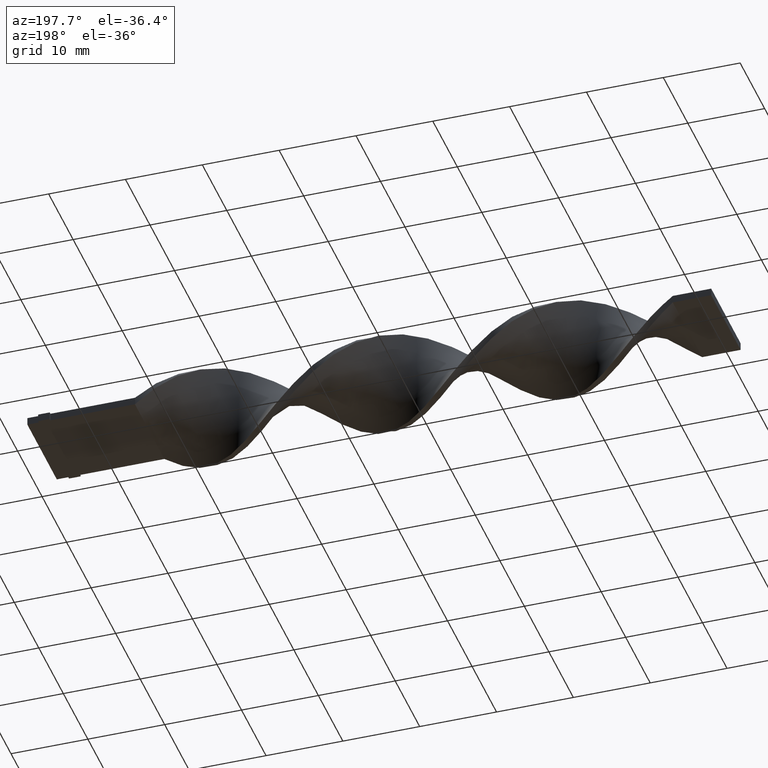
[diagram: clean part render]
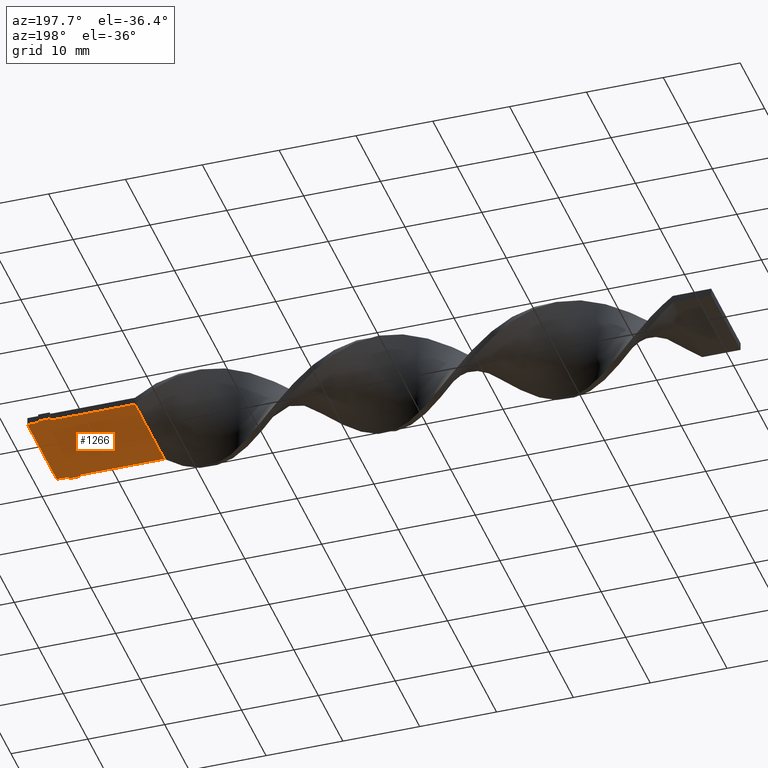
[diagram: same view with one face highlighted and labeled with its STEP entity id]
A machine part, auxiliary view. The second image highlights one B-rep face of the part: STEP entity #1266.
In plain terms, the highlighted planar face has unit normal (0, 0, 1).
Its self-contained STEP definition (entity closure, byte-faithful):
#30 = DIRECTION ( 'NONE',  ( -1.000000000000000000, -1.577021341797097067E-16, 0.000000000000000000 ) ) ;
#36 = LINE ( 'NONE', #1029, #1114 ) ;
#39 = LINE ( 'NONE', #1303, #1091 ) ;
#46 = AXIS2_PLACEMENT_3D ( 'NONE', #644, #521, #784 ) ;
#52 = CARTESIAN_POINT ( 'NONE',  ( -1.469576158976823947E-15, 6.000000000000000000, -0.5000000000000000000 ) ) ;
#74 = VECTOR ( 'NONE', #1448, 1000.000000000000000 ) ;
#76 = CARTESIAN_POINT ( 'NONE',  ( -1.499999999999993783, -6.000000000000000000, -0.5000000000000000000 ) ) ;
#103 = CARTESIAN_POINT ( 'NONE',  ( -1.499999999999995337, 6.000000000000000000, -0.5000000000000000000 ) ) ;
#137 = VERTEX_POINT ( 'NONE', #582 ) ;
#148 = LINE ( 'NONE', #651, #884 ) ;
#216 = ORIENTED_EDGE ( 'NONE', *, *, #1530, .F. ) ;
#224 = DIRECTION ( 'NONE',  ( -1.000000000000000000, 0.000000000000000000, 0.000000000000000000 ) ) ;
#232 = CARTESIAN_POINT ( 'NONE',  ( -1.499999999999995337, 6.000000000000000000, -0.5000000000000000000 ) ) ;
#237 = LINE ( 'NONE', #103, #571 ) ;
#262 = FACE_OUTER_BOUND ( 'NONE', #482, .T. ) ;
#313 = CARTESIAN_POINT ( 'NONE',  ( -1.499999999999995337, 6.299999999999999822, -0.5000000000000000000 ) ) ;
#325 = DIRECTION ( 'NONE',  ( 1.445602896647339163E-16, -1.000000000000000000, 0.000000000000000000 ) ) ;
#326 = CARTESIAN_POINT ( 'NONE',  ( -2.999999999999995115, 6.000000000000000000, -0.5000000000000000000 ) ) ;
#331 = VERTEX_POINT ( 'NONE', #1207 ) ;
#338 = ORIENTED_EDGE ( 'NONE', *, *, #1005, .F. ) ;
#353 = ORIENTED_EDGE ( 'NONE', *, *, #1323, .F. ) ;
#375 = CARTESIAN_POINT ( 'NONE',  ( -2.999999999999995115, 6.299999999999999822, -0.5000000000000000000 ) ) ;
#388 = EDGE_CURVE ( 'NONE', #871, #1131, #558, .T. ) ;
#416 = LINE ( 'NONE', #76, #1485 ) ;
#482 = EDGE_LOOP ( 'NONE', ( #857, #1600, #565, #804, #793, #1513, #353, #813, #1137, #1411, #338, #216 ) ) ;
#496 = CARTESIAN_POINT ( 'NONE',  ( -2.999999999999993339, -6.299999999999999822, -0.5000000000000000000 ) ) ;
#502 = EDGE_CURVE ( 'NONE', #1145, #331, #1415, .T. ) ;
#504 = CARTESIAN_POINT ( 'NONE',  ( -13.99999999999999822, 5.999999999999998224, -0.5000000000000000000 ) ) ;
#514 = DIRECTION ( 'NONE',  ( 0.000000000000000000, -1.000000000000000000, 0.000000000000000000 ) ) ;
#521 = DIRECTION ( 'NONE',  ( 0.000000000000000000, 0.000000000000000000, 1.000000000000000000 ) ) ;
#528 = VERTEX_POINT ( 'NONE', #1169 ) ;
#556 = LINE ( 'NONE', #52, #1378 ) ;
#558 = LINE ( 'NONE', #825, #834 ) ;
#565 = ORIENTED_EDGE ( 'NONE', *, *, #763, .T. ) ;
#571 = VECTOR ( 'NONE', #869, 1000.000000000000000 ) ;
#582 = CARTESIAN_POINT ( 'NONE',  ( -1.469576158976823947E-15, 6.000000000000000000, -0.5000000000000000000 ) ) ;
#607 = EDGE_CURVE ( 'NONE', #885, #975, #36, .T. ) ;
#629 = PLANE ( 'NONE',  #46 ) ;
#634 = CARTESIAN_POINT ( 'NONE',  ( -1.499999999999995337, 6.299999999999999822, -0.5000000000000000000 ) ) ;
#644 = CARTESIAN_POINT ( 'NONE',  ( 0.000000000000000000, 0.000000000000000000, -0.5000000000000000000 ) ) ;
#651 = CARTESIAN_POINT ( 'NONE',  ( -2.999999999999995115, 6.000000000000000000, -0.5000000000000000000 ) ) ;
#673 = CARTESIAN_POINT ( 'NONE',  ( -1.499999999999993783, -6.000000000000000000, -0.5000000000000000000 ) ) ;
#706 = LINE ( 'NONE', #844, #1302 ) ;
#739 = VERTEX_POINT ( 'NONE', #232 ) ;
#763 = EDGE_CURVE ( 'NONE', #906, #885, #1364, .T. ) ;
#784 = DIRECTION ( 'NONE',  ( 1.000000000000000000, 0.000000000000000000, -0.000000000000000000 ) ) ;
#790 = EDGE_CURVE ( 'NONE', #739, #1145, #237, .T. ) ;
#793 = ORIENTED_EDGE ( 'NONE', *, *, #1472, .T. ) ;
#804 = ORIENTED_EDGE ( 'NONE', *, *, #607, .T. ) ;
#813 = ORIENTED_EDGE ( 'NONE', *, *, #1217, .F. ) ;
#823 = DIRECTION ( 'NONE',  ( 0.000000000000000000, -1.000000000000000000, 0.000000000000000000 ) ) ;
#825 = CARTESIAN_POINT ( 'NONE',  ( -13.99999999999999822, 5.999999999999998224, -0.5000000000000000000 ) ) ;
#834 = VECTOR ( 'NONE', #325, 1000.000000000000000 ) ;
#844 = CARTESIAN_POINT ( 'NONE',  ( 0.000000000000000000, -6.000000000000000000, -0.5000000000000000000 ) ) ;
#857 = ORIENTED_EDGE ( 'NONE', *, *, #1491, .T. ) ;
#862 = VECTOR ( 'NONE', #224, 1000.000000000000000 ) ;
#869 = DIRECTION ( 'NONE',  ( 0.000000000000000000, 1.000000000000000000, 0.000000000000000000 ) ) ;
#871 = VERTEX_POINT ( 'NONE', #504 ) ;
#884 = VECTOR ( 'NONE', #30, 1000.000000000000000 ) ;
#885 = VERTEX_POINT ( 'NONE', #496 ) ;
#906 = VERTEX_POINT ( 'NONE', #1037 ) ;
#926 = DIRECTION ( 'NONE',  ( -1.000000000000000000, 0.000000000000000000, 0.000000000000000000 ) ) ;
#930 = DIRECTION ( 'NONE',  ( -1.000000000000000000, 0.000000000000000000, 0.000000000000000000 ) ) ;
#931 = DIRECTION ( 'NONE',  ( -1.224646799147353207E-16, 1.000000000000000000, 0.000000000000000000 ) ) ;
#975 = VERTEX_POINT ( 'NONE', #1313 ) ;
#1003 = LINE ( 'NONE', #375, #1163 ) ;
#1005 = EDGE_CURVE ( 'NONE', #137, #739, #556, .T. ) ;
#1029 = CARTESIAN_POINT ( 'NONE',  ( -2.999999999999993339, -6.299999999999999822, -0.5000000000000000000 ) ) ;
#1037 = CARTESIAN_POINT ( 'NONE',  ( -1.499999999999993783, -6.299999999999999822, -0.5000000000000000000 ) ) ;
#1051 = CARTESIAN_POINT ( 'NONE',  ( -2.999999999999993783, -6.000000000000000000, -0.5000000000000000000 ) ) ;
#1091 = VECTOR ( 'NONE', #926, 1000.000000000000000 ) ;
#1101 = EDGE_CURVE ( 'NONE', #1105, #906, #416, .T. ) ;
#1105 = VERTEX_POINT ( 'NONE', #673 ) ;
#1114 = VECTOR ( 'NONE', #1527, 1000.000000000000000 ) ;
#1131 = VERTEX_POINT ( 'NONE', #1423 ) ;
#1137 = ORIENTED_EDGE ( 'NONE', *, *, #502, .F. ) ;
#1145 = VERTEX_POINT ( 'NONE', #634 ) ;
#1154 = LINE ( 'NONE', #1051, #74 ) ;
#1163 = VECTOR ( 'NONE', #514, 1000.000000000000000 ) ;
#1169 = CARTESIAN_POINT ( 'NONE',  ( 0.000000000000000000, -6.000000000000000000, -0.5000000000000000000 ) ) ;
#1207 = CARTESIAN_POINT ( 'NONE',  ( -2.999999999999995115, 6.299999999999999822, -0.5000000000000000000 ) ) ;
#1217 = EDGE_CURVE ( 'NONE', #331, #1508, #1003, .T. ) ;
#1266 = ADVANCED_FACE ( 'NONE', ( #262 ), #629, .F. ) ;
#1302 = VECTOR ( 'NONE', #931, 1000.000000000000000 ) ;
#1303 = CARTESIAN_POINT ( 'NONE',  ( 0.000000000000000000, -6.000000000000000000, -0.5000000000000000000 ) ) ;
#1313 = CARTESIAN_POINT ( 'NONE',  ( -2.999999999999993783, -6.000000000000000000, -0.5000000000000000000 ) ) ;
#1323 = EDGE_CURVE ( 'NONE', #1508, #871, #148, .T. ) ;
#1364 = LINE ( 'NONE', #1486, #862 ) ;
#1378 = VECTOR ( 'NONE', #1413, 1000.000000000000000 ) ;
#1411 = ORIENTED_EDGE ( 'NONE', *, *, #790, .F. ) ;
#1413 = DIRECTION ( 'NONE',  ( -1.000000000000000000, 0.000000000000000000, 0.000000000000000000 ) ) ;
#1415 = LINE ( 'NONE', #313, #1616 ) ;
#1423 = CARTESIAN_POINT ( 'NONE',  ( -13.99999999999999645, -6.000000000000001776, -0.5000000000000000000 ) ) ;
#1448 = DIRECTION ( 'NONE',  ( -1.000000000000000000, -1.577021341797097067E-16, 0.000000000000000000 ) ) ;
#1472 = EDGE_CURVE ( 'NONE', #975, #1131, #1154, .T. ) ;
#1485 = VECTOR ( 'NONE', #823, 1000.000000000000000 ) ;
#1486 = CARTESIAN_POINT ( 'NONE',  ( -1.499999999999993783, -6.299999999999999822, -0.5000000000000000000 ) ) ;
#1491 = EDGE_CURVE ( 'NONE', #528, #1105, #39, .T. ) ;
#1508 = VERTEX_POINT ( 'NONE', #326 ) ;
#1513 = ORIENTED_EDGE ( 'NONE', *, *, #388, .F. ) ;
#1527 = DIRECTION ( 'NONE',  ( -1.445602896647339706E-15, 1.000000000000000000, 0.000000000000000000 ) ) ;
#1530 = EDGE_CURVE ( 'NONE', #528, #137, #706, .T. ) ;
#1600 = ORIENTED_EDGE ( 'NONE', *, *, #1101, .T. ) ;
#1616 = VECTOR ( 'NONE', #930, 1000.000000000000000 ) ;